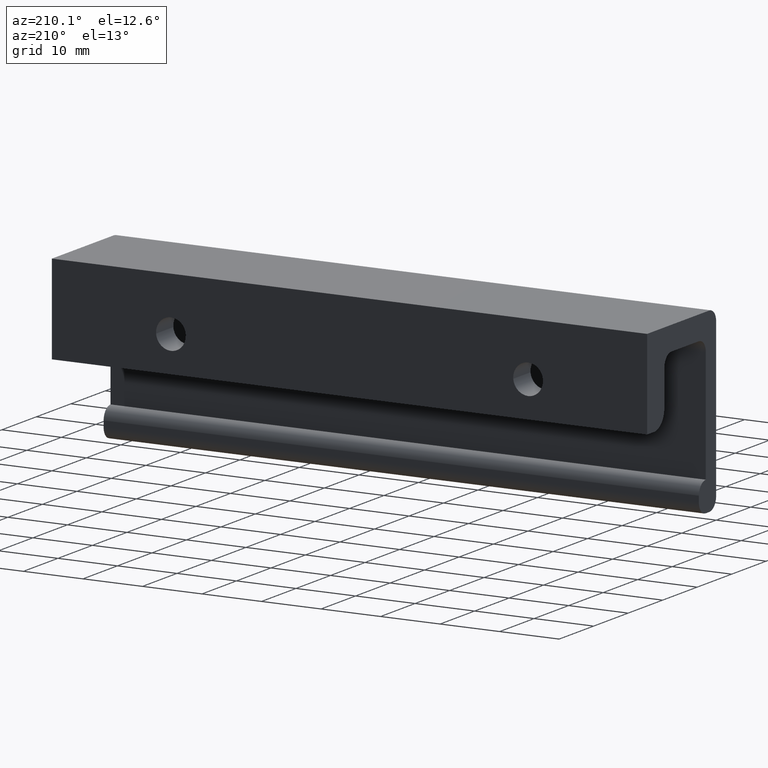
[diagram: clean part render]
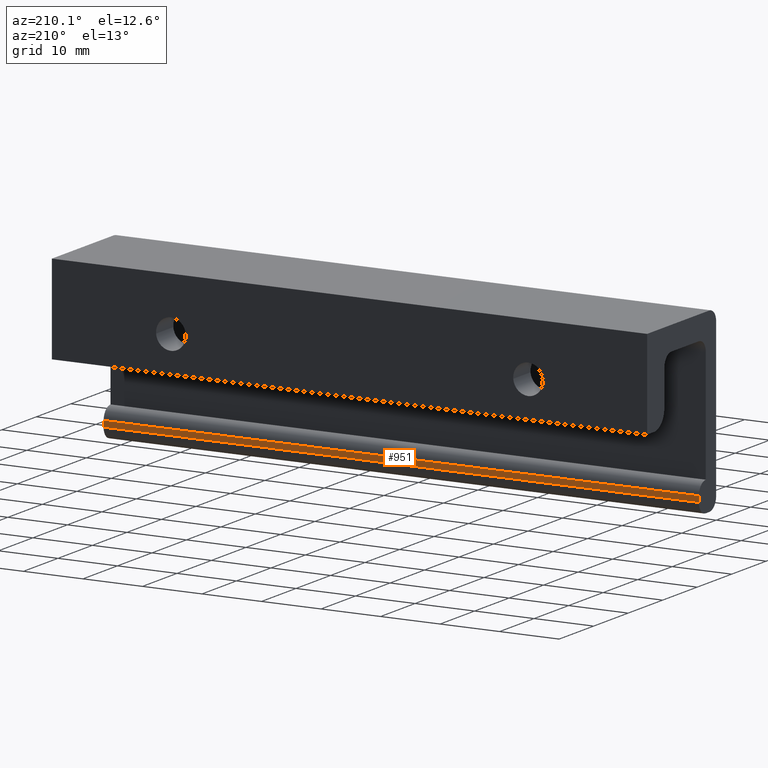
[diagram: same view with one face highlighted and labeled with its STEP entity id]
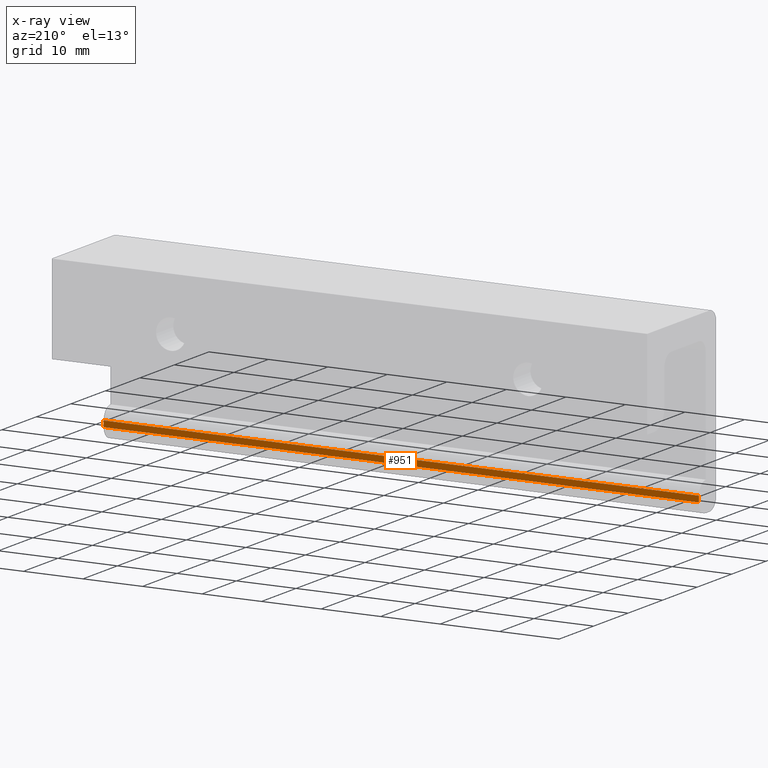
[diagram: x-ray of the same camera — body ghosted, the highlighted face saturated]
A machine part, auxiliary view. The second image highlights one B-rep face of the part: STEP entity #951.
The next image is the same camera in x-ray: the body ghosted, the highlighted face saturated — about 0% of this face is hidden behind the body in this view.
In plain terms, the highlighted face is a freeform B-spline surface patch.
Its self-contained STEP definition (entity closure, byte-faithful):
#517=CARTESIAN_POINT('',(0.0,-15.0,-27.0));
#518=VERTEX_POINT('',#517);
#532=CARTESIAN_POINT('',(0.0,-15.0,-28.0));
#533=VERTEX_POINT('',#532);
#534=CARTESIAN_POINT('',(0.0,-15.0,-28.0));
#535=CARTESIAN_POINT('',(0.0,-15.0,-27.0));
#536=QUASI_UNIFORM_CURVE('',1,(#534,#535),.UNSPECIFIED.,.F.,.U.);
#537=EDGE_CURVE('',#533,#518,#536,.T.);
#635=CARTESIAN_POINT('',(100.0,-15.0,-28.0));
#636=VERTEX_POINT('',#635);
#650=CARTESIAN_POINT('',(100.0,-15.0,-27.0));
#651=VERTEX_POINT('',#650);
#652=CARTESIAN_POINT('',(100.0,-15.0,-28.0));
#653=CARTESIAN_POINT('',(100.0,-15.0,-27.0));
#654=QUASI_UNIFORM_CURVE('',1,(#652,#653),.UNSPECIFIED.,.F.,.U.);
#655=EDGE_CURVE('',#636,#651,#654,.T.);
#928=CARTESIAN_POINT('',(100.0,-15.0,-27.0));
#929=CARTESIAN_POINT('',(0.0,-15.0,-27.0));
#930=QUASI_UNIFORM_CURVE('',1,(#928,#929),.UNSPECIFIED.,.F.,.U.);
#931=EDGE_CURVE('',#651,#518,#930,.T.);
#936=CARTESIAN_POINT('',(-4.994999806180597,-15.0,-26.950050001938191));
#937=CARTESIAN_POINT('',(-4.994999806180597,-15.0,-28.049950024883898));
#938=CARTESIAN_POINT('',(104.995002488389600,-15.0,-26.950050001938191));
#939=CARTESIAN_POINT('',(104.995002488389600,-15.0,-28.049950024883898));
#940=B_SPLINE_SURFACE_WITH_KNOTS('',1,1,((#936,#938),(#937,#939)),.UNSPECIFIED.,.F.,.F.,.U.,(2,2),(2,2),(0.041708334948495,0.958291687403247),(0.0,109.990002294570200),.UNSPECIFIED.);
#941=ORIENTED_EDGE('',*,*,#537,.T.);
#942=ORIENTED_EDGE('',*,*,#931,.F.);
#943=ORIENTED_EDGE('',*,*,#655,.F.);
#944=CARTESIAN_POINT('',(100.0,-15.0,-28.0));
#945=CARTESIAN_POINT('',(0.0,-15.0,-28.0));
#946=QUASI_UNIFORM_CURVE('',1,(#944,#945),.UNSPECIFIED.,.F.,.U.);
#947=EDGE_CURVE('',#636,#533,#946,.T.);
#948=ORIENTED_EDGE('',*,*,#947,.T.);
#949=EDGE_LOOP('',(#941,#942,#943,#948));
#950=FACE_OUTER_BOUND('',#949,.T.);
#951=ADVANCED_FACE('',(#950),#940,.F.);